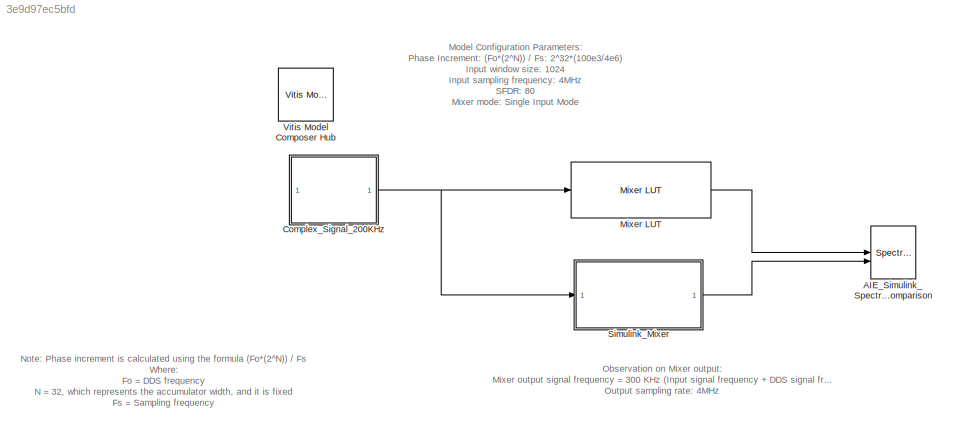
MODEL slx_3e9d97ec5bfd
KIND model
CONFIG AbsTol = auto
CONFIG EnableMultiTasking = off
CONFIG FixedStep = auto
CONFIG MaxStep = auto
CONFIG MinStep = auto
CONFIG RelTol = 1e-3
CONFIG SampleTimeConstraint = Unconstrained
CONFIG SolverName = VariableStepAuto
CONFIG StartTime = 0.0
CONFIG StopTime = 0.2
BLOCK [SpectrumAnalyzer] AIE_Simulink_Spectrum_Comparison
  AllowFFTLengthLessThanSamplesPerUpdate = on
  AveragingMethod = Exponential
  ChannelNames = [""]
  DefaultConfigurationName = spbscopes.SpectrumAnalyzerBlockCfg
  NumInputPorts = 2
  ScopeSpecificationString = spbscopes.SpectrumAnalyzerBlockCfg('CurrentConfiguration', extmgr.ConfigurationSet(extmgr.Configuration('Core','General UI',true,'FigureColor',[0.12941     0.12941     0.12941]),extmgr.Configuration('Visuals','Spectrum',true,'Title','','YLabel','','MinYLim','-42.382','MaxYLim','38.0344','Legend',true,'AxesProperties',struct('XGrid',{'on','on'},'YGrid',{'on','on'},'ZGrid',{'on','on'},'Color',{[0  0...<+2426ch>
  ShowLegend = on
  WasSavedAsWebScope = on
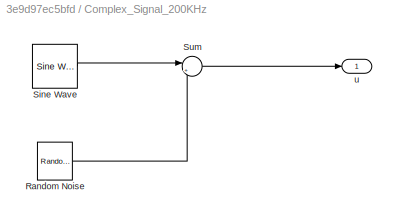
BLOCK [SubSystem] Complex_Signal_200KHz
BLOCK [Reference] Complex_Signal_200KHz/Random Noise  REF=dspobslib/Random
Source
  SourceBlock = dspobslib/Random\nSource
  SourceType = Random Source Obsolete
  UserDataPersistent = on
BLOCK [Reference] Complex_Signal_200KHz/Sine Wave  REF=dspsrcs4/Sine Wave
  SourceBlock = dspsrcs4/Sine Wave
  SourceType = Sine Wave
BLOCK [Sum] Complex_Signal_200KHz/Sum
  Inputs = |++
BLOCK [Outport] Complex_Signal_200KHz/u
BLOCK [Reference] Mixer LUT  REF=aieDSP/Mixer LUT
  SourceBlock = aieDSP/Mixer LUT
  SourceType = Mixer LUT
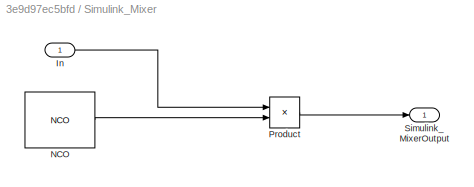
BLOCK [SubSystem] Simulink_Mixer
BLOCK [Inport] Simulink_Mixer/In
BLOCK [Reference] Simulink_Mixer/NCO  REF=dspsigops/NCO
  SourceBlock = dspsigops/NCO
  SourceType = NCO
BLOCK [Product] Simulink_Mixer/Product
BLOCK [Outport] Simulink_Mixer/Simulink_MixerOutput
BLOCK [Reference] Vitis Model Composer Hub  REF=vmcUtilities/Vitis Model Composer Hub
  SourceBlock = vmcUtilities/Vitis Model Composer Hub
  SourceType = VMC Hub
  Tag = genX
  UserDataPersistent = on
ANNOTATION (root): Model Configuration Parameters: Phase Increment: (Fo*(2^N)) / Fs: 2^32*(100e3/4e6) Input window size: 1024 Input sampling frequency: 4MHz SFDR: 80 Mixer mode: Single Input Mode
ANNOTATION (root): Note : Phase increment is calculated using the formula (Fo*(2^N)) / Fs Where: Fo = DDS frequency N = 32, which represents the accumulator width, and it is fixed Fs = Sampling frequency
ANNOTATION (root): Observation on Mixer output: Mixer output signal frequency = 300 KHz (Input signal frequency + DDS signal frequency) Output sampling rate: 4MHz
LINE Complex_Signal_200KHz/Random Noise:1 -> Complex_Signal_200KHz/Sum:2
LINE Complex_Signal_200KHz/Sine Wave:1 -> Complex_Signal_200KHz/Sum:1
LINE Complex_Signal_200KHz/Sum:1 -> Complex_Signal_200KHz/u:1
NET Complex_Signal_200KHz:1 -> Mixer LUT:1, Simulink_Mixer:1
LINE Mixer LUT:1 -> AIE_Simulink_Spectrum_Comparison:1
LINE Simulink_Mixer/In:1 -> Simulink_Mixer/Product:1
LINE Simulink_Mixer/NCO:1 -> Simulink_Mixer/Product:2
LINE Simulink_Mixer/Product:1 -> Simulink_Mixer/Simulink_MixerOutput:1
LINE Simulink_Mixer:1 -> AIE_Simulink_Spectrum_Comparison:2
note: NET lines group one-source signal fan-out (src -> all destinations, sorted); 1:1 wires keep LINE
